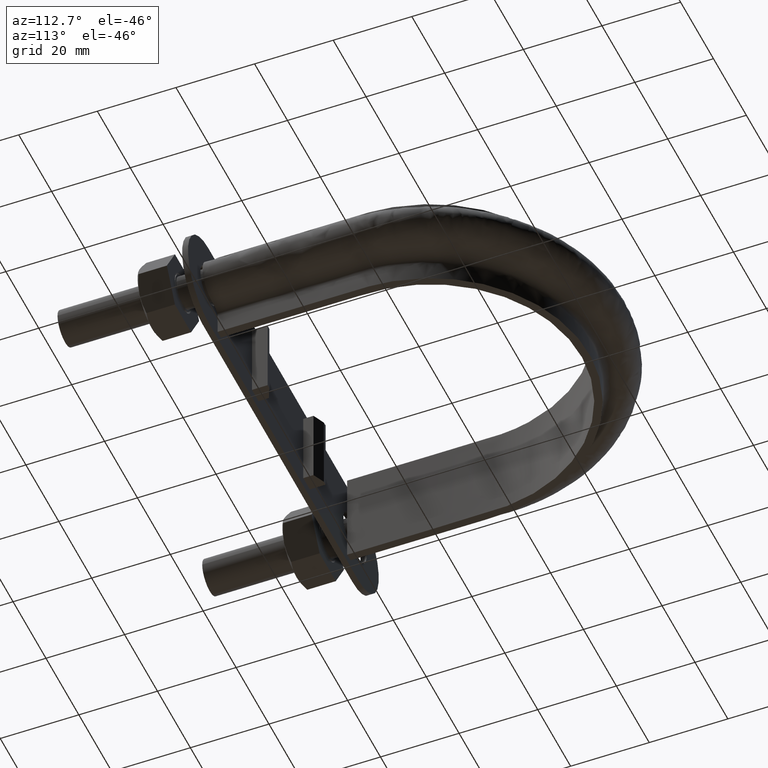
[diagram: clean part render]
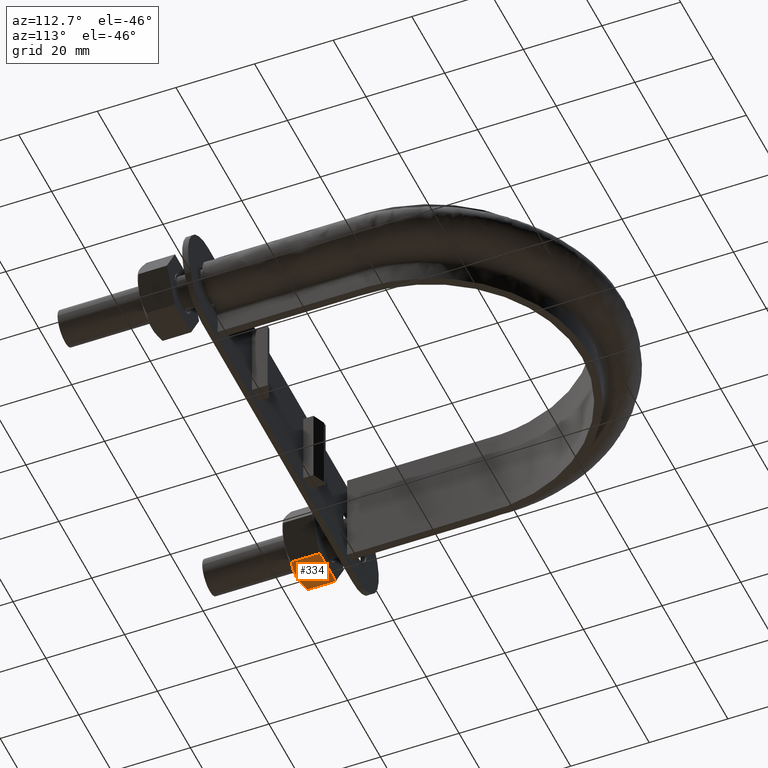
[diagram: same view with one face highlighted and labeled with its STEP entity id]
A machine part, auxiliary view. The second image highlights one B-rep face of the part: STEP entity #334.
In plain terms, the highlighted planar face has unit normal (0, -0, 1).
Its self-contained STEP definition (entity closure, byte-faithful):
#334 = ADVANCED_FACE( '', ( #530 ), #531, .F. );
#530 = FACE_OUTER_BOUND( '', #1454, .T. );
#531 = PLANE( '', #1455 );
#1454 = EDGE_LOOP( '', ( #2028, #2029, #2030, #2031, #2032 ) );
#1455 = AXIS2_PLACEMENT_3D( '', #2033, #2034, #2035 );
#2028 = ORIENTED_EDGE( '', *, *, #2493, .F. );
#2029 = ORIENTED_EDGE( '', *, *, #2494, .F. );
#2030 = ORIENTED_EDGE( '', *, *, #2492, .F. );
#2031 = ORIENTED_EDGE( '', *, *, #2495, .F. );
#2032 = ORIENTED_EDGE( '', *, *, #2496, .F. );
#2033 = CARTESIAN_POINT( '', ( -39.0925227118903, 30.0000000000000, -8.49999999999599 ) );
#2034 = DIRECTION( '', ( 3.39896542596630E-033, -6.12303176911189E-017, 1.00000000000000 ) );
#2035 = DIRECTION( '', ( 1.00000000000000, 5.55111512423085E-017, 0.000000000000000 ) );
#2492 = EDGE_CURVE( '', #2818, #2813, #2820, .T. );
#2493 = EDGE_CURVE( '', #2821, #2822, #2823, .T. );
#2494 = EDGE_CURVE( '', #2813, #2821, #2824, .T. );
#2495 = EDGE_CURVE( '', #2825, #2818, #2826, .T. );
#2496 = EDGE_CURVE( '', #2822, #2825, #2827, .F. );
#2813 = VERTEX_POINT( '', #3528 );
#2818 = VERTEX_POINT( '', #3534 );
#2820 = LINE( '', #3536, #3537 );
#2821 = VERTEX_POINT( '', #3538 );
#2822 = VERTEX_POINT( '', #3539 );
#2823 = B_SPLINE_CURVE_WITH_KNOTS( '', 3, ( #3540, #3541, #3542, #3543, #3544, #3545 ), .UNSPECIFIED., .F., .F., ( 4, 2, 4 ), ( 2.11038219202008E-017, 0.00246745482903528, 0.00493490965807053 ), .UNSPECIFIED. );
#2824 = B_SPLINE_CURVE_WITH_KNOTS( '', 3, ( #3546, #3547, #3548, #3549, #3550, #3551 ), .UNSPECIFIED., .F., .F., ( 4, 2, 4 ), ( 3.79313859366988E-016, 0.00246745482903526, 0.00493490965807014 ), .UNSPECIFIED. );
#2825 = VERTEX_POINT( '', #3552 );
#2826 = LINE( '', #3553, #3554 );
#2827 = LINE( '', #3555, #3556 );
#3528 = CARTESIAN_POINT( '', ( -48.8774993593013, 22.7505553499465, -8.49999999999599 ) );
#3534 = CARTESIAN_POINT( '', ( -48.8774993593017, 30.0000000000000, -8.49999999999599 ) );
#3536 = CARTESIAN_POINT( '', ( -48.8774993593017, 30.0000000000000, -8.49999999999599 ) );
#3537 = VECTOR( '', #4011, 1000.00000000000 );
#3538 = CARTESIAN_POINT( '', ( -44.0000000000000, 22.0000000000003, -8.49999999999623 ) );
#3539 = CARTESIAN_POINT( '', ( -39.1225006406987, 22.7505553499465, -8.49999999999599 ) );
#3540 = CARTESIAN_POINT( '', ( -44.0000000000000, 22.0000000000001, -8.49999999999599 ) );
#3541 = CARTESIAN_POINT( '', ( -43.1678340498095, 22.0000000000001, -8.49999999999599 ) );
#3542 = CARTESIAN_POINT( '', ( -42.3466937523149, 22.0716504305292, -8.49999999999599 ) );
#3543 = CARTESIAN_POINT( '', ( -40.7225568243382, 22.3328582843707, -8.49999999999599 ) );
#3544 = CARTESIAN_POINT( '', ( -39.9194282933244, 22.5215585493656, -8.49999999999599 ) );
#3545 = CARTESIAN_POINT( '', ( -39.1225006406991, 22.7505553499464, -8.49999999999599 ) );
#3546 = CARTESIAN_POINT( '', ( -48.8774993593009, 22.7505553499464, -8.49999999999599 ) );
#3547 = CARTESIAN_POINT( '', ( -48.0805717066757, 22.5215585493656, -8.49999999999599 ) );
#3548 = CARTESIAN_POINT( '', ( -47.2774431756613, 22.3328582843706, -8.49999999999599 ) );
#3549 = CARTESIAN_POINT( '', ( -45.6533062476849, 22.0716504305291, -8.49999999999599 ) );
#3550 = CARTESIAN_POINT( '', ( -44.8321659501903, 22.0000000000001, -8.49999999999599 ) );
#3551 = CARTESIAN_POINT( '', ( -44.0000000000000, 22.0000000000001, -8.49999999999599 ) );
#3552 = CARTESIAN_POINT( '', ( -39.1225006406983, 30.0000000000000, -8.49999999999599 ) );
#3553 = CARTESIAN_POINT( '', ( -48.8999999999979, 30.0000000000000, -8.49999999999599 ) );
#3554 = VECTOR( '', #4012, 1000.00000000000 );
#3555 = CARTESIAN_POINT( '', ( -39.1225006406983, 30.0000000000000, -8.49999999999599 ) );
#3556 = VECTOR( '', #4013, 1000.00000000000 );
#4011 = DIRECTION( '', ( -2.44921270764476E-016, -1.00000000000000, -6.12303176911188E-017 ) );
#4012 = DIRECTION( '', ( -1.00000000000000, 2.44921270764475E-016, 1.83955726441877E-032 ) );
#4013 = DIRECTION( '', ( -2.44921270764476E-016, -1.00000000000000, -6.12303176911188E-017 ) );